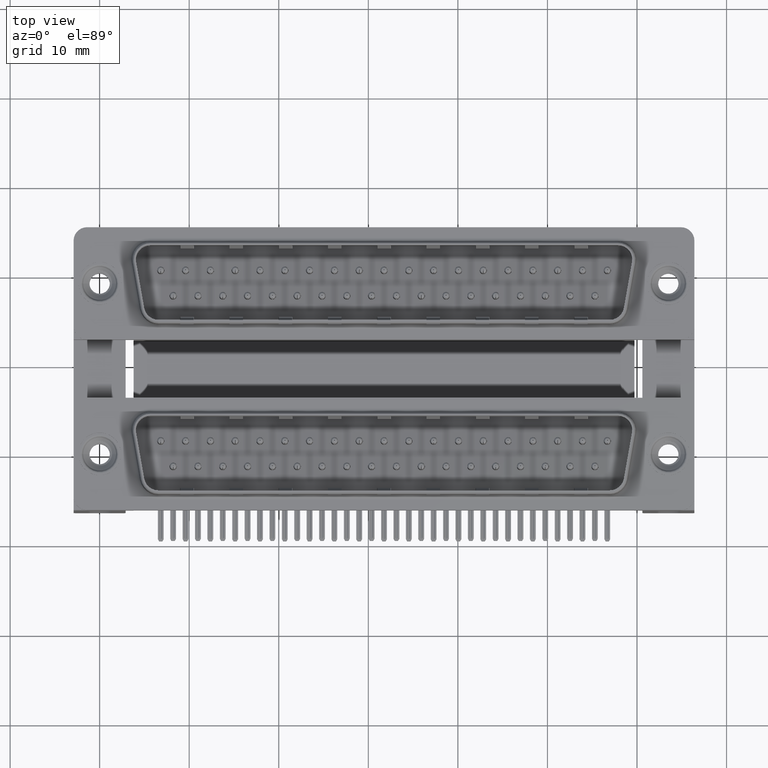
[diagram: clean part render]
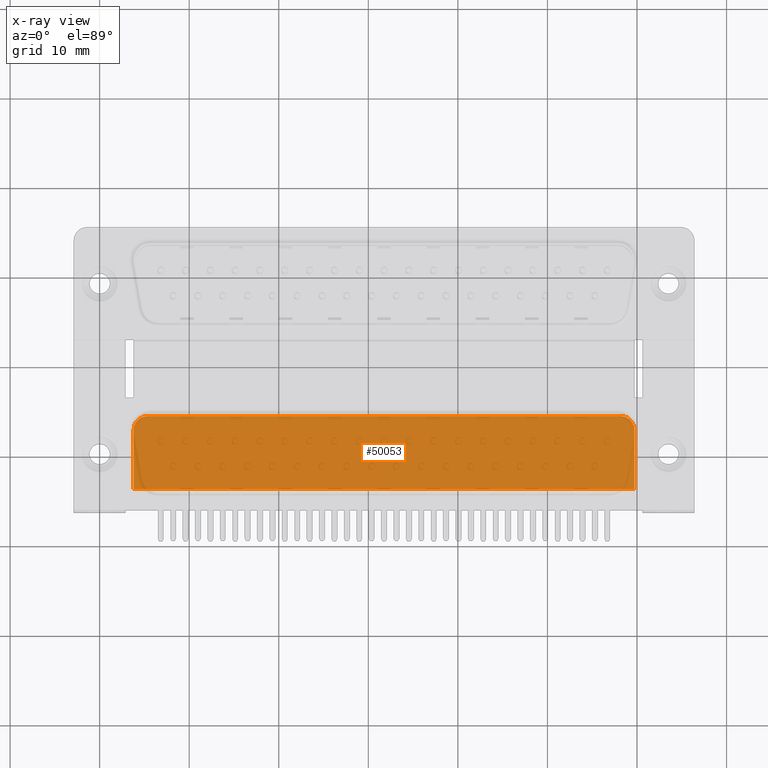
[diagram: x-ray — body ghosted, one internal face saturated and labeled with its STEP entity id]
A machine part, top view, then the same camera in x-ray: the body is ghosted and one INTERNAL B-rep face — a face not visible from any outside direction — is saturated and labeled: STEP entity #50053.
In plain terms, the highlighted planar face has unit normal (0, 0, -1).
Its self-contained STEP definition (entity closure, byte-faithful):
#543 = VECTOR ( 'NONE', #20129, 1000.000000000000000 ) ;
#915 = LINE ( 'NONE', #41888, #543 ) ;
#2417 = AXIS2_PLACEMENT_3D ( 'NONE', #4564, #12345, #12084 ) ;
#3136 = ORIENTED_EDGE ( 'NONE', *, *, #21803, .F. ) ;
#4284 = CARTESIAN_POINT ( 'NONE',  ( 5.290000000000000924, 4.424999999999988276, -12.00000000000000000 ) ) ;
#4564 = CARTESIAN_POINT ( 'NONE',  ( 5.290000000000000924, 2.924999999999988276, -12.00000000000000000 ) ) ;
#4984 = CARTESIAN_POINT ( 'NONE',  ( 3.790000000000001812, -6.275000000000004796, -12.00000000000000000 ) ) ;
#5125 = DIRECTION ( 'NONE',  ( 1.000000000000000000, -0.0000000000000000000, -0.0000000000000000000 ) ) ;
#5307 = VERTEX_POINT ( 'NONE', #14162 ) ;
#7756 = VECTOR ( 'NONE', #37348, 1000.000000000000000 ) ;
#8459 = CARTESIAN_POINT ( 'NONE',  ( 3.790000000000000924, 2.924999999999988276, -12.00000000000000000 ) ) ;
#8972 = VECTOR ( 'NONE', #39022, 1000.000000000000000 ) ;
#9148 = CARTESIAN_POINT ( 'NONE',  ( 60.60000000000000142, -3.734999999999998987, -12.00000000000000000 ) ) ;
#10786 = EDGE_CURVE ( 'NONE', #19751, #41556, #51133, .T. ) ;
#11829 = FACE_OUTER_BOUND ( 'NONE', #23166, .T. ) ;
#12084 = DIRECTION ( 'NONE',  ( -1.000000000000000000, 0.0000000000000000000, -0.0000000000000000000 ) ) ;
#12345 = DIRECTION ( 'NONE',  ( 0.0000000000000000000, 0.0000000000000000000, -1.000000000000000000 ) ) ;
#14162 = CARTESIAN_POINT ( 'NONE',  ( 59.71000000000000085, 2.924999999999988276, -12.00000000000000000 ) ) ;
#14212 = CARTESIAN_POINT ( 'NONE',  ( 5.290000000000000924, 4.424999999999988276, -12.00000000000000000 ) ) ;
#16453 = EDGE_CURVE ( 'NONE', #41556, #5307, #33664, .T. ) ;
#19512 = DIRECTION ( 'NONE',  ( 0.0000000000000000000, 0.0000000000000000000, -1.000000000000000000 ) ) ;
#19751 = VERTEX_POINT ( 'NONE', #4284 ) ;
#20129 = DIRECTION ( 'NONE',  ( -0.0000000000000000000, -1.000000000000000000, -0.0000000000000000000 ) ) ;
#20359 = VERTEX_POINT ( 'NONE', #25163 ) ;
#21099 = ORIENTED_EDGE ( 'NONE', *, *, #47890, .T. ) ;
#21803 = EDGE_CURVE ( 'NONE', #52547, #20359, #46891, .T. ) ;
#23166 = EDGE_LOOP ( 'NONE', ( #3136, #51361, #30750, #50515, #40344, #21099 ) ) ;
#25163 = CARTESIAN_POINT ( 'NONE',  ( 59.71000000000000085, -3.734999999999998987, -12.00000000000000000 ) ) ;
#28099 = CIRCLE ( 'NONE', #42687, 1.500000000000000000 ) ;
#30240 = AXIS2_PLACEMENT_3D ( 'NONE', #40265, #19512, #43235 ) ;
#30750 = ORIENTED_EDGE ( 'NONE', *, *, #45192, .T. ) ;
#32186 = CARTESIAN_POINT ( 'NONE',  ( 5.290000000000000924, 2.924999999999988276, -12.00000000000000000 ) ) ;
#33664 = CIRCLE ( 'NONE', #30240, 1.500000000000001332 ) ;
#37348 = DIRECTION ( 'NONE',  ( -9.427844978134828829E-17, 1.000000000000000000, 0.0000000000000000000 ) ) ;
#39022 = DIRECTION ( 'NONE',  ( 1.000000000000000000, 0.0000000000000000000, 0.0000000000000000000 ) ) ;
#40265 = CARTESIAN_POINT ( 'NONE',  ( 58.21000000000000085, 2.924999999999988276, -12.00000000000000000 ) ) ;
#40344 = ORIENTED_EDGE ( 'NONE', *, *, #16453, .T. ) ;
#41556 = VERTEX_POINT ( 'NONE', #50880 ) ;
#41888 = CARTESIAN_POINT ( 'NONE',  ( 59.71000000000000085, -6.275000000000004796, -12.00000000000000000 ) ) ;
#41909 = LINE ( 'NONE', #4984, #7756 ) ;
#42687 = AXIS2_PLACEMENT_3D ( 'NONE', #32186, #44808, #48850 ) ;
#43235 = DIRECTION ( 'NONE',  ( -1.000000000000000000, 0.0000000000000000000, 0.0000000000000000000 ) ) ;
#44694 = VECTOR ( 'NONE', #5125, 1000.000000000000000 ) ;
#44808 = DIRECTION ( 'NONE',  ( 0.0000000000000000000, 0.0000000000000000000, -1.000000000000000000 ) ) ;
#44816 = CARTESIAN_POINT ( 'NONE',  ( 3.790000000000001368, -3.734999999999998987, -12.00000000000000000 ) ) ;
#45192 = EDGE_CURVE ( 'NONE', #48955, #19751, #28099, .T. ) ;
#46891 = LINE ( 'NONE', #9148, #44694 ) ;
#47890 = EDGE_CURVE ( 'NONE', #5307, #20359, #915, .T. ) ;
#48850 = DIRECTION ( 'NONE',  ( -1.000000000000000000, 0.0000000000000000000, 0.0000000000000000000 ) ) ;
#48955 = VERTEX_POINT ( 'NONE', #8459 ) ;
#49031 = PLANE ( 'NONE',  #2417 ) ;
#50053 = ADVANCED_FACE ( 'NONE', ( #11829 ), #49031, .T. ) ;
#50515 = ORIENTED_EDGE ( 'NONE', *, *, #10786, .T. ) ;
#50880 = CARTESIAN_POINT ( 'NONE',  ( 58.21000000000000085, 4.424999999999989164, -12.00000000000000000 ) ) ;
#51133 = LINE ( 'NONE', #14212, #8972 ) ;
#51361 = ORIENTED_EDGE ( 'NONE', *, *, #52294, .T. ) ;
#52294 = EDGE_CURVE ( 'NONE', #52547, #48955, #41909, .T. ) ;
#52547 = VERTEX_POINT ( 'NONE', #44816 ) ;